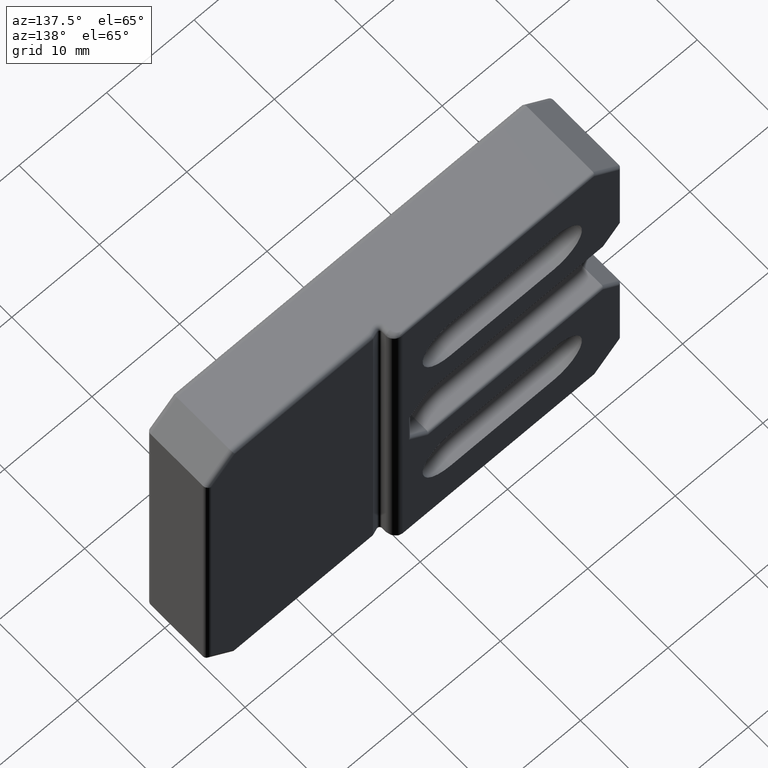
[diagram: clean part render]
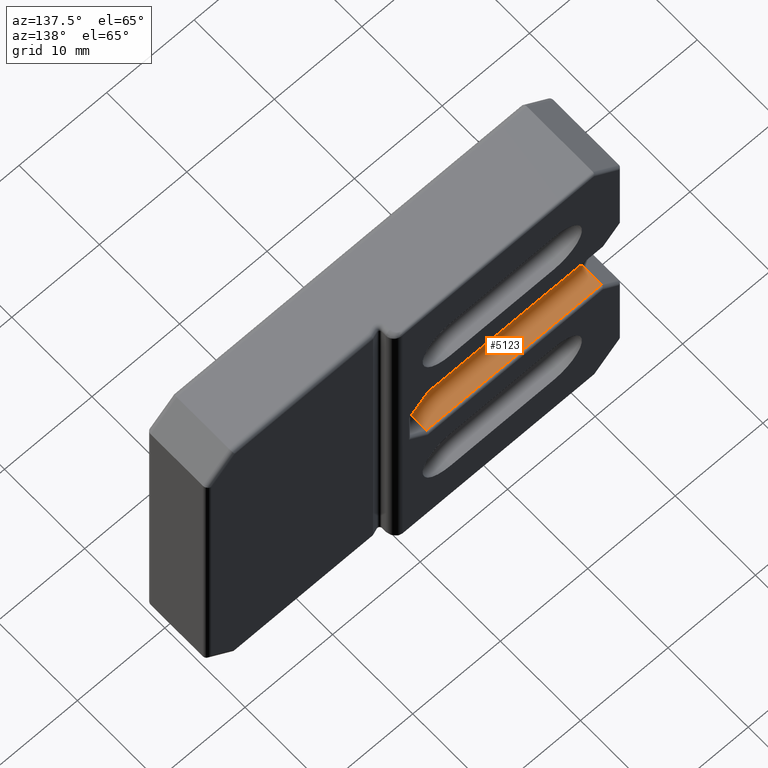
[diagram: same view with one face highlighted and labeled with its STEP entity id]
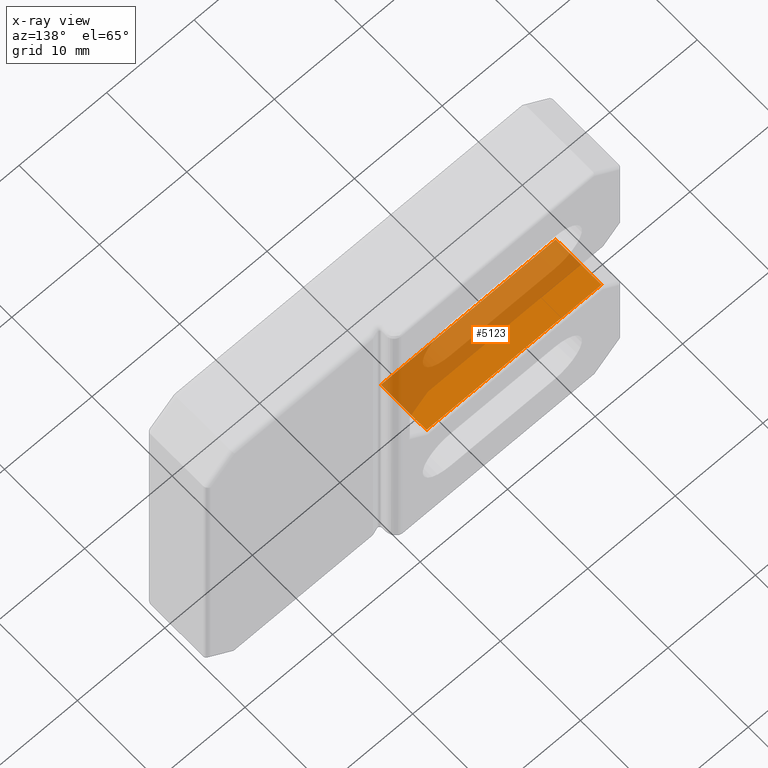
[diagram: x-ray of the same camera — body ghosted, the highlighted face saturated]
A machine part, auxiliary view. The second image highlights one B-rep face of the part: STEP entity #5123.
The next image is the same camera in x-ray: the body ghosted, the highlighted face saturated — about 56% of this face is hidden behind the body in this view.
In plain terms, the highlighted planar face has unit normal (0, 0, -1).
Its self-contained STEP definition (entity closure, byte-faithful):
#405=PLANE('',#5445);
#648=LINE('',#8156,#1165);
#656=LINE('',#8182,#1173);
#900=LINE('',#8973,#1417);
#901=LINE('',#8975,#1418);
#1165=VECTOR('',#5907,20.);
#1173=VECTOR('',#5933,20.);
#1417=VECTOR('',#6531,5.7);
#1418=VECTOR('',#6534,5.7);
#1787=FACE_OUTER_BOUND('',#2092,.T.);
#2092=EDGE_LOOP('',(#4717,#4718,#4719,#4720));
#2417=VERTEX_POINT('',#8153);
#2418=VERTEX_POINT('',#8155);
#2425=VERTEX_POINT('',#8174);
#2427=VERTEX_POINT('',#8180);
#3011=EDGE_CURVE('',#2418,#2417,#648,.T.);
#3023=EDGE_CURVE('',#2427,#2425,#656,.T.);
#3335=EDGE_CURVE('',#2425,#2417,#900,.T.);
#3336=EDGE_CURVE('',#2427,#2418,#901,.T.);
#4717=ORIENTED_EDGE('',*,*,#3023,.F.);
#4718=ORIENTED_EDGE('',*,*,#3336,.T.);
#4719=ORIENTED_EDGE('',*,*,#3011,.T.);
#4720=ORIENTED_EDGE('',*,*,#3335,.F.);
#5123=ADVANCED_FACE('',(#1787),#405,.F.);
#5445=AXIS2_PLACEMENT_3D('',#8974,#6532,#6533);
#5907=DIRECTION('',(1.,8.5401771125012E-17,2.22044604925031E-16));
#5933=DIRECTION('',(1.,8.5401771125012E-17,2.22044604925031E-16));
#6531=DIRECTION('',(8.5401771125012E-17,-1.,0.));
#6532=DIRECTION('center_axis',(2.22044604925031E-16,1.89630025293512E-32,
-1.));
#6533=DIRECTION('ref_axis',(1.,0.,0.));
#6534=DIRECTION('',(8.5401771125012E-17,-1.,0.));
#8153=CARTESIAN_POINT('',(22.,3.,-4.));
#8155=CARTESIAN_POINT('',(2.00000000000001,3.,-4.));
#8156=CARTESIAN_POINT('',(22.,3.,-4.));
#8174=CARTESIAN_POINT('',(22.,8.7,-4.));
#8180=CARTESIAN_POINT('',(2.00000000000001,8.7,-4.));
#8182=CARTESIAN_POINT('',(1.,8.7,-4.));
#8973=CARTESIAN_POINT('',(22.,9.,-4.));
#8974=CARTESIAN_POINT('Origin',(2.00000000000001,9.,-4.));
#8975=CARTESIAN_POINT('',(2.00000000000001,9.,-4.));